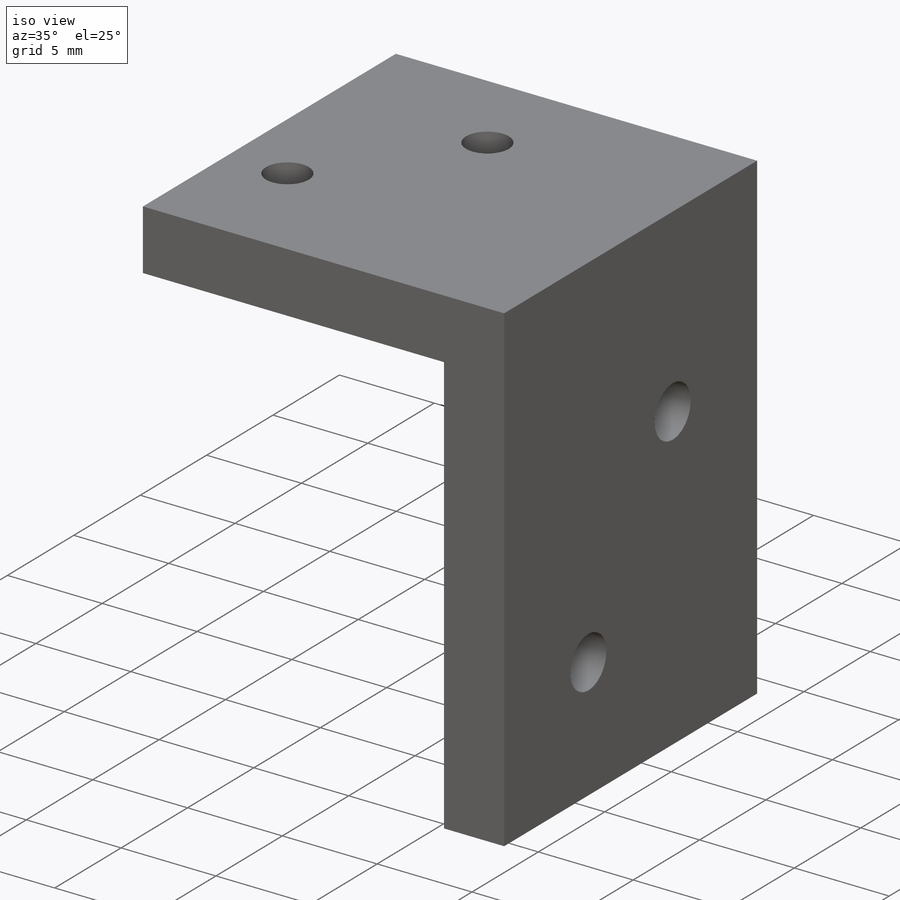
[diagram: iso view]
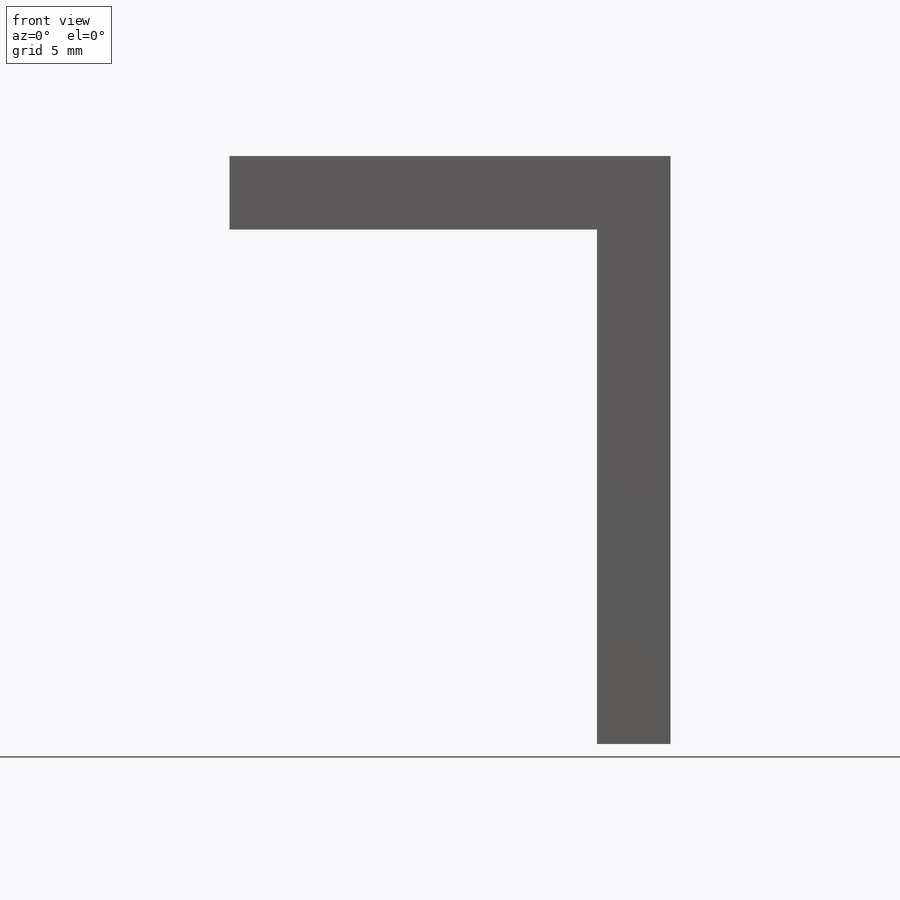
[diagram: front view]
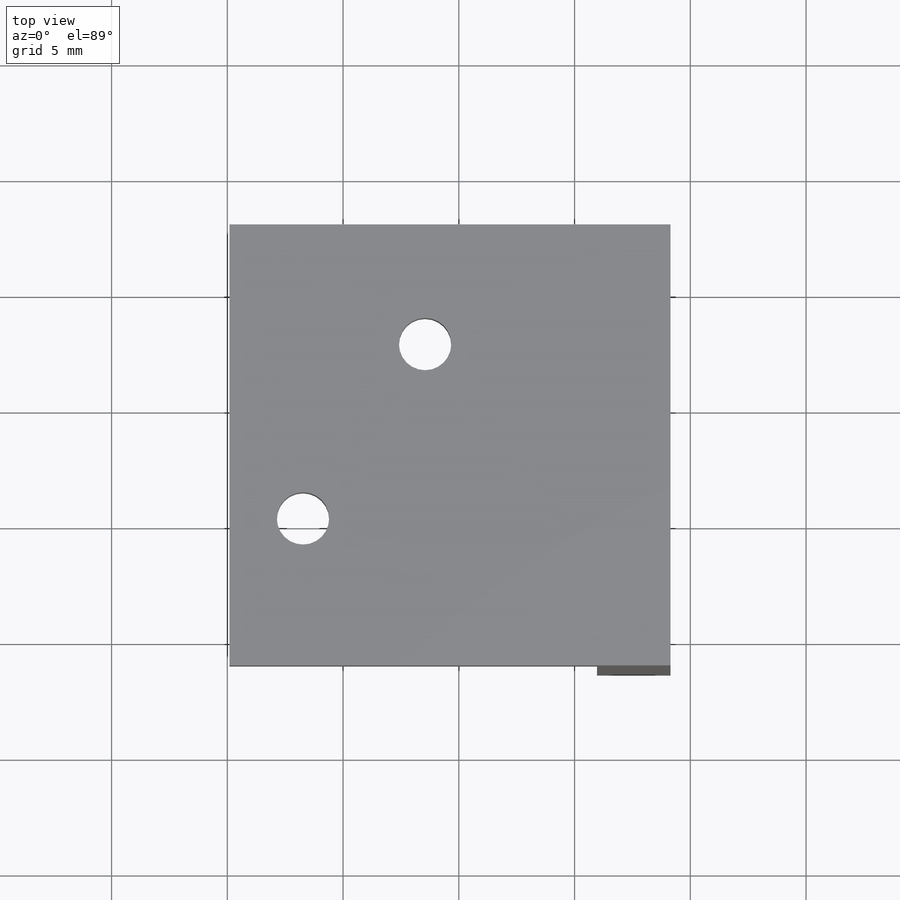
[diagram: top view]
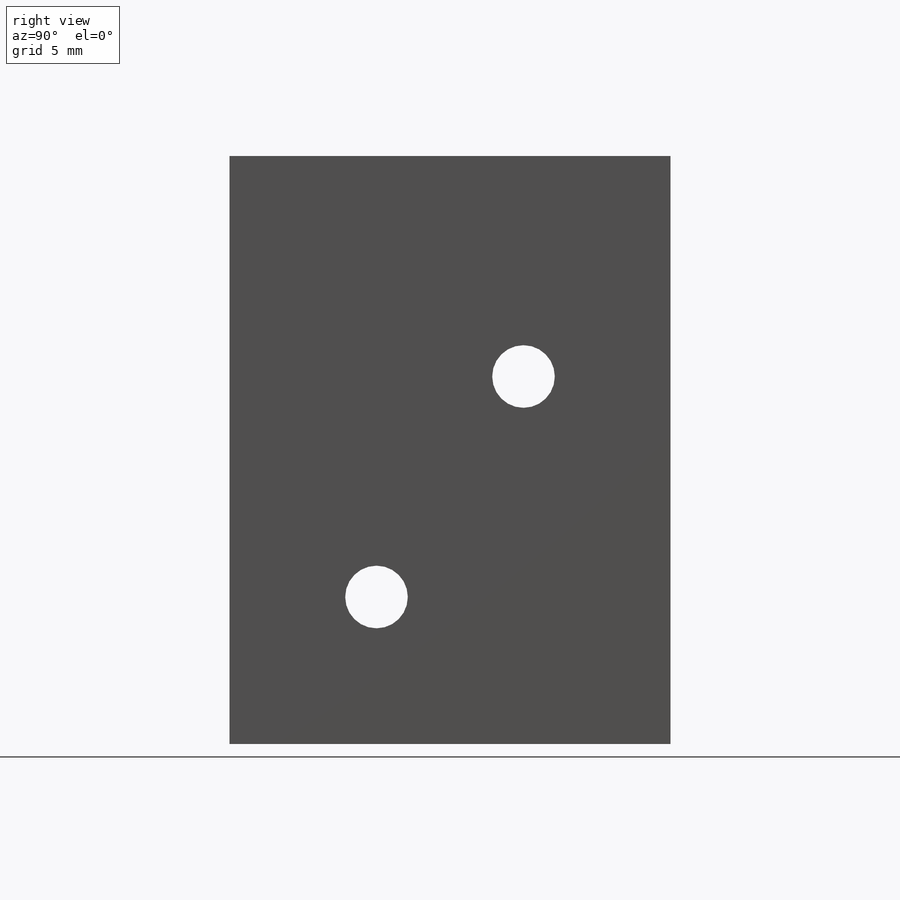
[diagram: right view]
SOLIDWORKS PART (.sldprt)
format: sldprt  version: not decoded by parser v0  size: 197,632 bytes
history: native  units: mm
features: sketch x6, hole x2, material x1, extrude x1 (+12 scaffold rows collapsed)
feature tree (22):
  scaffold x12  (default folders/planes/origin — collapsed)
  material  "Material <not specified>"
  sketch  "Sketch1"  dims[D1=3.175mm D2=3.175mm D3=25.4mm D4=19.05mm]
  extrude  "Boss-Extrude1"  Depth=6.35mm
  hole  "Tap Drill for #6-32 Tap1"  Diameter=2.7051mm Depth=3.175mm
  sketch  "3DSketch1"  dims[D1=6.35mm D2=6.35mm D3=6.35mm D4=6.35mm]
  sketch  "Sketch4"  dims[hole-wizard template sketch: 60 standard entries collapsed; hole parameters kept: c18.Thru Hole Depth=3.175mm]
  sketch  "Sketch5"  dims[c1.D1=9.1948mm c1.D2=6.35mm c1.D3=3.175mm c1.D4=8.1026mm c2.D2=9.1948mm c3.D2=35.0deg c3.D4=6.35mm]
  hole  "Tap Drill for #4-40 Tap1"  Diameter=2.2606mm Depth=3.302mm
  sketch  "3DSketch2"
  sketch  "Sketch6"  dims[hole-wizard template sketch: 47 standard entries collapsed; hole parameters kept: c15.Hole Depth=3.302mm c15.D3=~14.816244mm c15.Drill Angle=118.0deg]
decode coverage: 8 of 9 modeling features carry decoded parameters
note: ~ marks probable driven/reference dimensions
note: suppression state not decoded; provenance and decode notes live in map.json
